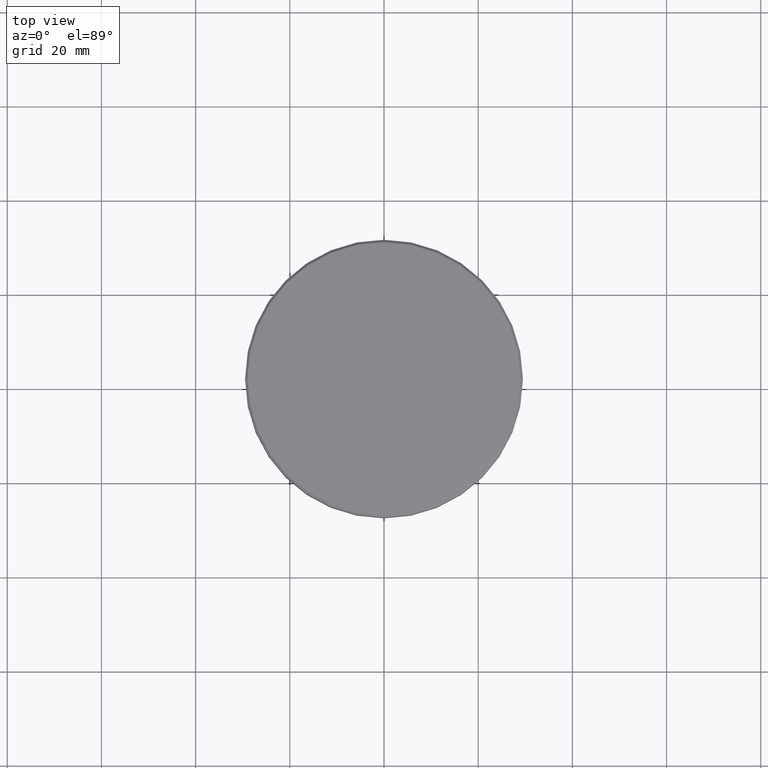
[diagram: clean part render]
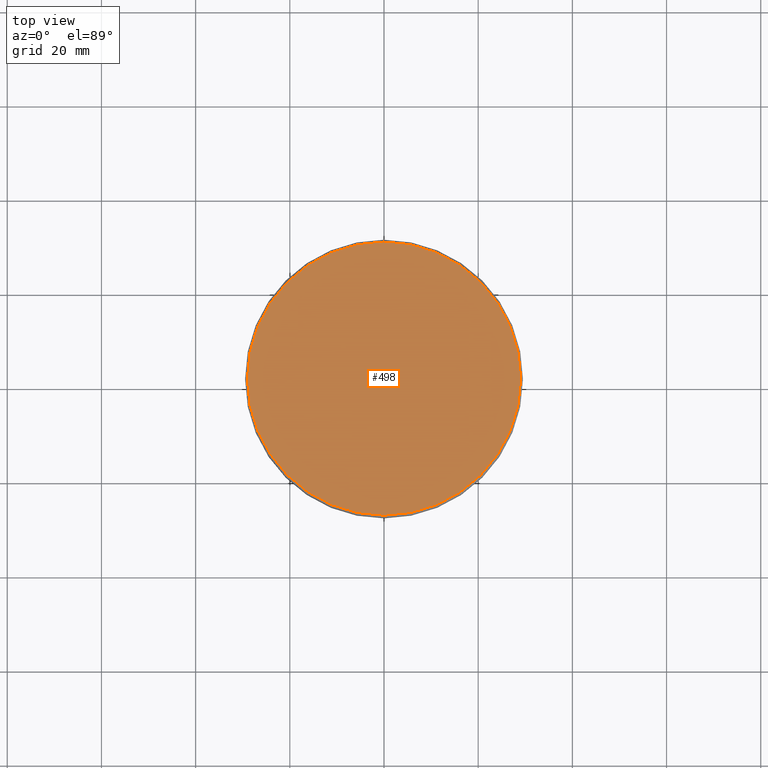
[diagram: same view with one face highlighted and labeled with its STEP entity id]
A machine part, top view. The second image highlights one B-rep face of the part: STEP entity #498.
In plain terms, the highlighted planar face has unit normal (0, -0, 1).
Its self-contained STEP definition (entity closure, byte-faithful):
#14 = EDGE_LOOP ( 'NONE', ( #469, #863 ) ) ;
#38 = VERTEX_POINT ( 'NONE', #806 ) ;
#52 = AXIS2_PLACEMENT_3D ( 'NONE', #147, #804, #517 ) ;
#147 = CARTESIAN_POINT ( 'NONE',  ( 0.000000000000000000, 0.000000000000000000, 0.000000000000000000 ) ) ;
#157 = DIRECTION ( 'NONE',  ( 0.000000000000000000, -0.000000000000000000, 1.000000000000000000 ) ) ;
#244 = CARTESIAN_POINT ( 'NONE',  ( -29.00000000000001066, 0.000000000000000000, 0.000000000000000000 ) ) ;
#285 = AXIS2_PLACEMENT_3D ( 'NONE', #635, #157, #1159 ) ;
#469 = ORIENTED_EDGE ( 'NONE', *, *, #1171, .T. ) ;
#490 = CARTESIAN_POINT ( 'NONE',  ( 0.000000000000000000, 0.000000000000000000, 0.000000000000000000 ) ) ;
#498 = ADVANCED_FACE ( 'NONE', ( #981 ), #986, .T. ) ;
#517 = DIRECTION ( 'NONE',  ( 1.000000000000000000, 0.000000000000000000, 0.000000000000000000 ) ) ;
#635 = CARTESIAN_POINT ( 'NONE',  ( 0.000000000000000000, 0.000000000000000000, 0.000000000000000000 ) ) ;
#739 = CIRCLE ( 'NONE', #52, 29.00000000000001066 ) ;
#782 = DIRECTION ( 'NONE',  ( -0.000000000000000000, -0.000000000000000000, 1.000000000000000000 ) ) ;
#804 = DIRECTION ( 'NONE',  ( -0.000000000000000000, -0.000000000000000000, 1.000000000000000000 ) ) ;
#806 = CARTESIAN_POINT ( 'NONE',  ( 29.00000000000001066, 3.582091887506008606E-15, 0.000000000000000000 ) ) ;
#842 = EDGE_CURVE ( 'NONE', #38, #960, #739, .T. ) ;
#863 = ORIENTED_EDGE ( 'NONE', *, *, #842, .T. ) ;
#865 = AXIS2_PLACEMENT_3D ( 'NONE', #490, #782, #1133 ) ;
#960 = VERTEX_POINT ( 'NONE', #244 ) ;
#981 = FACE_OUTER_BOUND ( 'NONE', #14, .T. ) ;
#986 = PLANE ( 'NONE',  #285 ) ;
#1043 = CIRCLE ( 'NONE', #865, 29.00000000000001066 ) ;
#1133 = DIRECTION ( 'NONE',  ( 1.000000000000000000, 0.000000000000000000, 0.000000000000000000 ) ) ;
#1159 = DIRECTION ( 'NONE',  ( 1.000000000000000000, 0.000000000000000000, 0.000000000000000000 ) ) ;
#1171 = EDGE_CURVE ( 'NONE', #960, #38, #1043, .T. ) ;